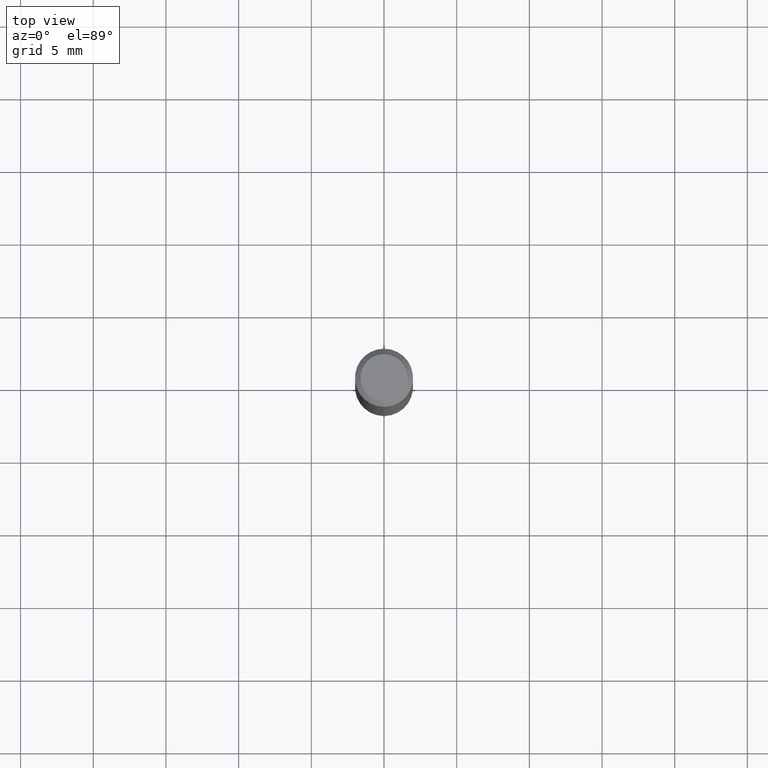
[diagram: clean part render]
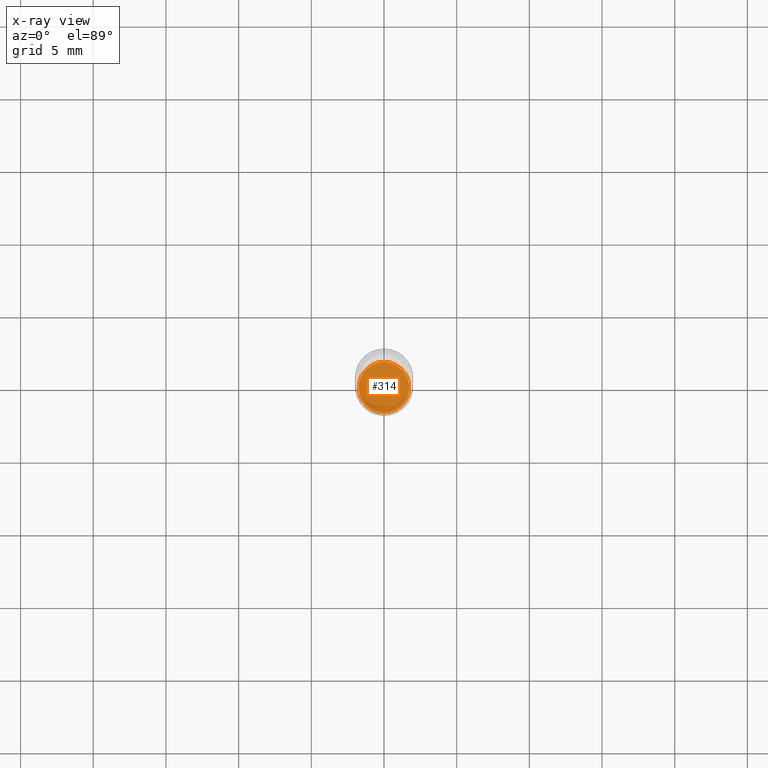
[diagram: x-ray — body ghosted, one internal face saturated and labeled with its STEP entity id]
A machine part, top view, then the same camera in x-ray: the body is ghosted and one INTERNAL B-rep face — a face not visible from any outside direction — is saturated and labeled: STEP entity #314.
In plain terms, the highlighted planar face has unit normal (-0, 0, 1).
Its self-contained STEP definition (entity closure, byte-faithful):
#19 = FACE_OUTER_BOUND ( 'NONE', #456, .T. ) ;
#38 = EDGE_CURVE ( 'NONE', #493, #252, #482, .T. ) ;
#67 = AXIS2_PLACEMENT_3D ( 'NONE', #99, #445, #96 ) ;
#96 = DIRECTION ( 'NONE',  ( -6.982962677686265922E-15, -1.000000000000000000, 3.491191864012879314E-15 ) ) ;
#99 = CARTESIAN_POINT ( 'NONE',  ( 3.658968301381109379E-29, -5.223172147749667414E-15, -1.496099999999999985 ) ) ;
#111 = CARTESIAN_POINT ( 'NONE',  ( 3.658968301381109379E-29, -5.223172147749667414E-15, -1.496099999999999985 ) ) ;
#150 = CIRCLE ( 'NONE', #427, 0.06840000000000005798 ) ;
#157 = AXIS2_PLACEMENT_3D ( 'NONE', #307, #380, #496 ) ;
#173 = PLANE ( 'NONE',  #67 ) ;
#216 = ORIENTED_EDGE ( 'NONE', *, *, #429, .F. ) ;
#252 = VERTEX_POINT ( 'NONE', #488 ) ;
#303 = DIRECTION ( 'NONE',  ( -2.445670945378724655E-29, 3.491191864012879314E-15, 1.000000000000000000 ) ) ;
#307 = CARTESIAN_POINT ( 'NONE',  ( 3.658968301381109379E-29, -5.223172147749667414E-15, -1.496099999999999985 ) ) ;
#314 = ADVANCED_FACE ( 'NONE', ( #19 ), #173, .F. ) ;
#380 = DIRECTION ( 'NONE',  ( -2.445670945378724655E-29, 3.491191864012879314E-15, 1.000000000000000000 ) ) ;
#407 = ORIENTED_EDGE ( 'NONE', *, *, #38, .F. ) ;
#421 = DIRECTION ( 'NONE',  ( -6.982962677686266711E-15, -1.000000000000000000, 3.993929815298627073E-15 ) ) ;
#427 = AXIS2_PLACEMENT_3D ( 'NONE', #111, #303, #421 ) ;
#429 = EDGE_CURVE ( 'NONE', #252, #493, #150, .T. ) ;
#445 = DIRECTION ( 'NONE',  ( -2.445670945378724095E-29, 3.491191864012879314E-15, 1.000000000000000000 ) ) ;
#456 = EDGE_LOOP ( 'NONE', ( #216, #407 ) ) ;
#465 = CARTESIAN_POINT ( 'NONE',  ( 4.877875880993454787E-16, 0.06839999999999483993, -1.496100000000000207 ) ) ;
#482 = CIRCLE ( 'NONE', #157, 0.06840000000000005798 ) ;
#488 = CARTESIAN_POINT ( 'NONE',  ( -4.776346471537044438E-16, -0.06840000000000528990, -1.496099999999999541 ) ) ;
#493 = VERTEX_POINT ( 'NONE', #465 ) ;
#496 = DIRECTION ( 'NONE',  ( -6.982962677686266711E-15, -1.000000000000000000, 3.993929815298627073E-15 ) ) ;